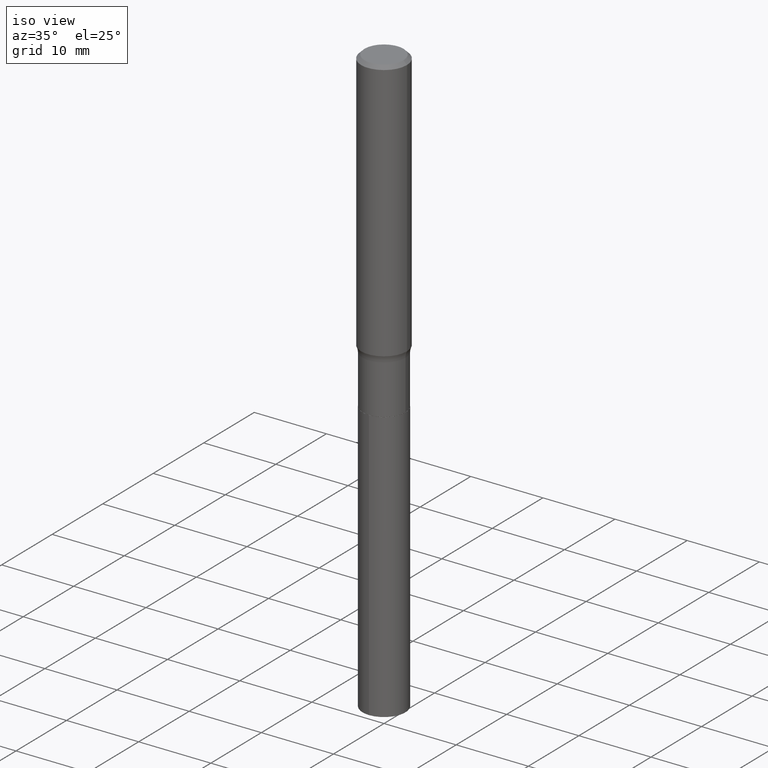
[diagram: clean part render]
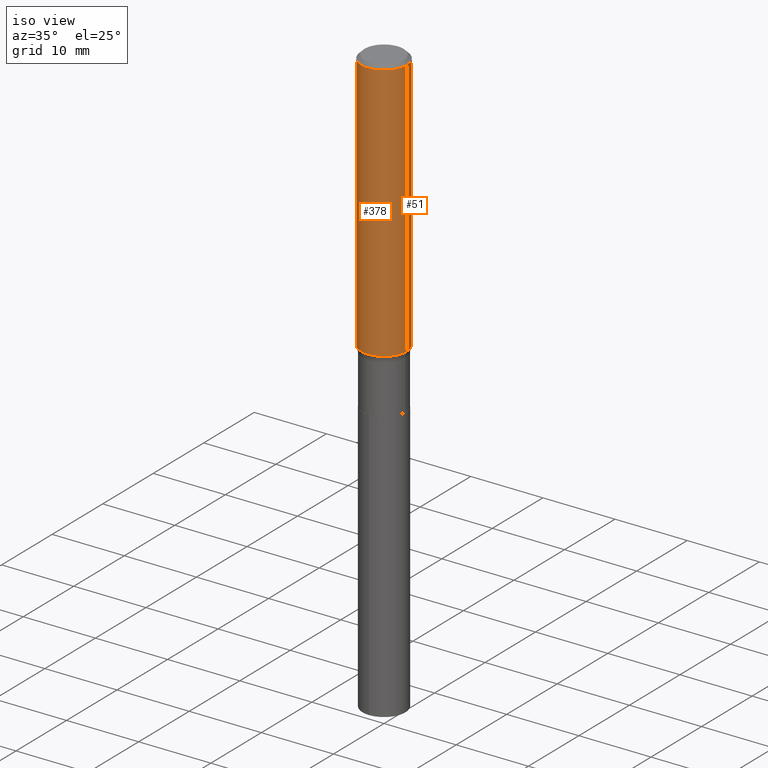
[diagram: same view with one multi-face feature highlighted, each face labeled with its STEP entity id]
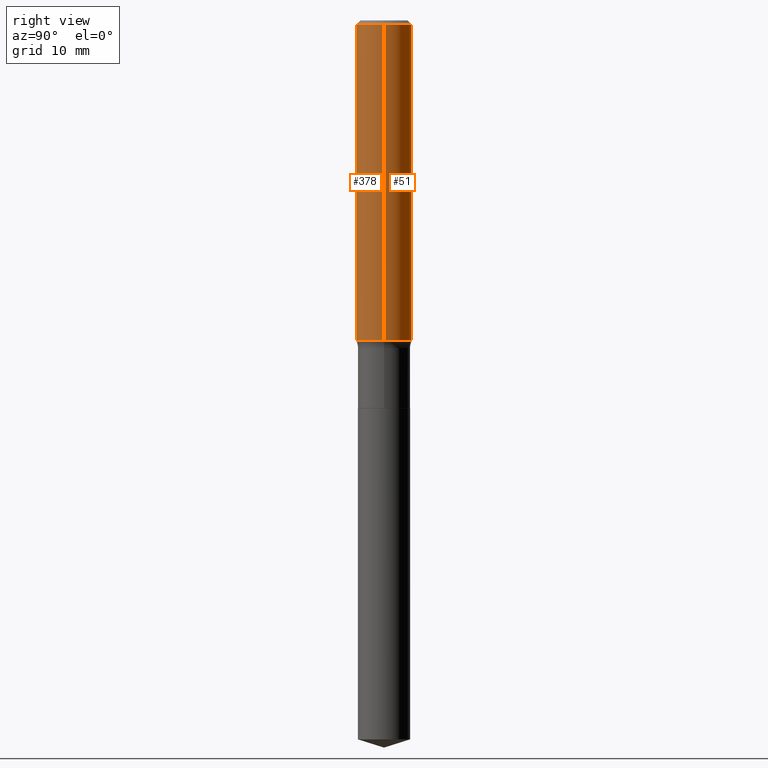
[diagram: same view with one multi-face feature highlighted, each face labeled with its STEP entity id]
A machine part, iso view. The highlighted faces form ONE feature: a constant-radius fillet chain: 2 tangent blend faces with common blend radius 3.175 mm. The faces share edges in the B-rep.
A second angle (right view) of the same feature is appended — it is thin or edge-on in the first view.
Their STEP definitions:
[1] entity #51 (Cylinder):
#34 = EDGE_CURVE ( 'NONE', #232, #150, #185, .T. ) ;
#36 = DIRECTION ( 'NONE',  ( 1.000000000000000000, -6.982962677686267499E-15, 0.000000000000000000 ) ) ;
#38 = ORIENTED_EDGE ( 'NONE', *, *, #64, .F. ) ;
#50 = DIRECTION ( 'NONE',  ( -2.445468806185136877E-29, 3.491481338843145188E-15, 1.000000000000000000 ) ) ;
#51 = ADVANCED_FACE ( 'NONE', ( #206 ), #344, .T. ) ;
#58 = AXIS2_PLACEMENT_3D ( 'NONE', #271, #379, #36 ) ;
#62 = CARTESIAN_POINT ( 'NONE',  ( -0.1250000000000001110, 8.881784197001260212E-16, -6.148668862818637832E-30 ) ) ;
#64 = EDGE_CURVE ( 'NONE', #326, #417, #110, .T. ) ;
#96 = ORIENTED_EDGE ( 'NONE', *, *, #34, .T. ) ;
#110 = CIRCLE ( 'NONE', #473, 0.1250000000000000000 ) ;
#115 = DIRECTION ( 'NONE',  ( 1.000000000000000000, -6.982962677686266711E-15, 0.000000000000000000 ) ) ;
#119 = VECTOR ( 'NONE', #50, 39.37007874015748143 ) ;
#150 = VERTEX_POINT ( 'NONE', #260 ) ;
#166 = EDGE_LOOP ( 'NONE', ( #96, #309, #38, #459 ) ) ;
#185 = CIRCLE ( 'NONE', #58, 0.1250000000000001943 ) ;
#204 = AXIS2_PLACEMENT_3D ( 'NONE', #303, #336, #451 ) ;
#206 = FACE_OUTER_BOUND ( 'NONE', #166, .T. ) ;
#232 = VERTEX_POINT ( 'NONE', #356 ) ;
#233 = EDGE_CURVE ( 'NONE', #232, #326, #409, .T. ) ;
#253 = LINE ( 'NONE', #62, #119 ) ;
#260 = CARTESIAN_POINT ( 'NONE',  ( -0.1250000000000001943, -4.106353161009043403E-15, -1.430490698931829119 ) ) ;
#267 = DIRECTION ( 'NONE',  ( -2.445468806185136597E-29, 3.491481338843145583E-15, 1.000000000000000000 ) ) ;
#271 = CARTESIAN_POINT ( 'NONE',  ( 3.498220381775761986E-29, -4.994531580709170213E-15, -1.430490698931829119 ) ) ;
#303 = CARTESIAN_POINT ( 'NONE',  ( 0.000000000000000000, 0.000000000000000000, 0.000000000000000000 ) ) ;
#309 = ORIENTED_EDGE ( 'NONE', *, *, #434, .T. ) ;
#326 = VERTEX_POINT ( 'NONE', #443 ) ;
#336 = DIRECTION ( 'NONE',  ( -2.445468806185136597E-29, 3.491481338843145583E-15, 1.000000000000000000 ) ) ;
#344 = CYLINDRICAL_SURFACE ( 'NONE', #204, 0.1250000000000001110 ) ;
#356 = CARTESIAN_POINT ( 'NONE',  ( 0.1250000000000001943, -5.867401915419955130E-15, -1.430490698931829119 ) ) ;
#364 = CARTESIAN_POINT ( 'NONE',  ( 0.1250000000000001110, -8.728703347107841277E-16, 6.095220969744924646E-30 ) ) ;
#369 = DIRECTION ( 'NONE',  ( -2.445468806185136877E-29, 3.491481338843145188E-15, 1.000000000000000000 ) ) ;
#379 = DIRECTION ( 'NONE',  ( -2.445468806185136597E-29, 3.491481338843145583E-15, 1.000000000000000000 ) ) ;
#409 = LINE ( 'NONE', #364, #431 ) ;
#417 = VERTEX_POINT ( 'NONE', #433 ) ;
#431 = VECTOR ( 'NONE', #369, 39.37007874015748143 ) ;
#433 = CARTESIAN_POINT ( 'NONE',  ( -0.1250000000000000000, -1.641820008206113066E-15, -0.01875000000000012074 ) ) ;
#434 = EDGE_CURVE ( 'NONE', #150, #417, #253, .T. ) ;
#443 = CARTESIAN_POINT ( 'NONE',  ( 0.1250000000000000000, -9.383356098140926809E-16, -0.01875000000000012074 ) ) ;
#451 = DIRECTION ( 'NONE',  ( 1.000000000000000000, -6.982962677686266711E-15, 4.876176775795935232E-29 ) ) ;
#455 = CARTESIAN_POINT ( 'NONE',  ( 4.585254011597161247E-31, -6.546527510330940369E-17, -0.01875000000000012074 ) ) ;
#459 = ORIENTED_EDGE ( 'NONE', *, *, #233, .F. ) ;
#473 = AXIS2_PLACEMENT_3D ( 'NONE', #455, #267, #115 ) ;
[2] entity #378 (Cylinder):
#7 = DIRECTION ( 'NONE',  ( -2.445468806185136597E-29, 3.491481338843145583E-15, 1.000000000000000000 ) ) ;
#29 = AXIS2_PLACEMENT_3D ( 'NONE', #67, #472, #249 ) ;
#43 = CIRCLE ( 'NONE', #315, 0.1250000000000001943 ) ;
#50 = DIRECTION ( 'NONE',  ( -2.445468806185136877E-29, 3.491481338843145188E-15, 1.000000000000000000 ) ) ;
#62 = CARTESIAN_POINT ( 'NONE',  ( -0.1250000000000001110, 8.881784197001260212E-16, -6.148668862818637832E-30 ) ) ;
#67 = CARTESIAN_POINT ( 'NONE',  ( 4.585254011597161247E-31, -6.546527510330940369E-17, -0.01875000000000012074 ) ) ;
#106 = ORIENTED_EDGE ( 'NONE', *, *, #233, .T. ) ;
#118 = ORIENTED_EDGE ( 'NONE', *, *, #479, .T. ) ;
#119 = VECTOR ( 'NONE', #50, 39.37007874015748143 ) ;
#150 = VERTEX_POINT ( 'NONE', #260 ) ;
#159 = CARTESIAN_POINT ( 'NONE',  ( 3.498220381775761986E-29, -4.994531580709170213E-15, -1.430490698931829119 ) ) ;
#201 = ORIENTED_EDGE ( 'NONE', *, *, #434, .F. ) ;
#232 = VERTEX_POINT ( 'NONE', #356 ) ;
#233 = EDGE_CURVE ( 'NONE', #232, #326, #409, .T. ) ;
#249 = DIRECTION ( 'NONE',  ( 1.000000000000000000, -6.982962677686266711E-15, 0.000000000000000000 ) ) ;
#253 = LINE ( 'NONE', #62, #119 ) ;
#260 = CARTESIAN_POINT ( 'NONE',  ( -0.1250000000000001943, -4.106353161009043403E-15, -1.430490698931829119 ) ) ;
#270 = ORIENTED_EDGE ( 'NONE', *, *, #296, .F. ) ;
#296 = EDGE_CURVE ( 'NONE', #417, #326, #400, .T. ) ;
#315 = AXIS2_PLACEMENT_3D ( 'NONE', #159, #337, #341 ) ;
#326 = VERTEX_POINT ( 'NONE', #443 ) ;
#337 = DIRECTION ( 'NONE',  ( -2.445468806185136597E-29, 3.491481338843145583E-15, 1.000000000000000000 ) ) ;
#341 = DIRECTION ( 'NONE',  ( 1.000000000000000000, -6.982962677686267499E-15, 0.000000000000000000 ) ) ;
#349 = DIRECTION ( 'NONE',  ( 1.000000000000000000, -6.982962677686266711E-15, 4.876176775795935232E-29 ) ) ;
#356 = CARTESIAN_POINT ( 'NONE',  ( 0.1250000000000001943, -5.867401915419955130E-15, -1.430490698931829119 ) ) ;
#363 = EDGE_LOOP ( 'NONE', ( #201, #118, #106, #270 ) ) ;
#364 = CARTESIAN_POINT ( 'NONE',  ( 0.1250000000000001110, -8.728703347107841277E-16, 6.095220969744924646E-30 ) ) ;
#366 = CYLINDRICAL_SURFACE ( 'NONE', #466, 0.1250000000000001110 ) ;
#369 = DIRECTION ( 'NONE',  ( -2.445468806185136877E-29, 3.491481338843145188E-15, 1.000000000000000000 ) ) ;
#370 = CARTESIAN_POINT ( 'NONE',  ( 0.000000000000000000, 0.000000000000000000, 0.000000000000000000 ) ) ;
#378 = ADVANCED_FACE ( 'NONE', ( #407 ), #366, .T. ) ;
#400 = CIRCLE ( 'NONE', #29, 0.1250000000000000000 ) ;
#407 = FACE_OUTER_BOUND ( 'NONE', #363, .T. ) ;
#409 = LINE ( 'NONE', #364, #431 ) ;
#417 = VERTEX_POINT ( 'NONE', #433 ) ;
#431 = VECTOR ( 'NONE', #369, 39.37007874015748143 ) ;
#433 = CARTESIAN_POINT ( 'NONE',  ( -0.1250000000000000000, -1.641820008206113066E-15, -0.01875000000000012074 ) ) ;
#434 = EDGE_CURVE ( 'NONE', #150, #417, #253, .T. ) ;
#443 = CARTESIAN_POINT ( 'NONE',  ( 0.1250000000000000000, -9.383356098140926809E-16, -0.01875000000000012074 ) ) ;
#466 = AXIS2_PLACEMENT_3D ( 'NONE', #370, #7, #349 ) ;
#472 = DIRECTION ( 'NONE',  ( -2.445468806185136597E-29, 3.491481338843145583E-15, 1.000000000000000000 ) ) ;
#479 = EDGE_CURVE ( 'NONE', #150, #232, #43, .T. ) ;